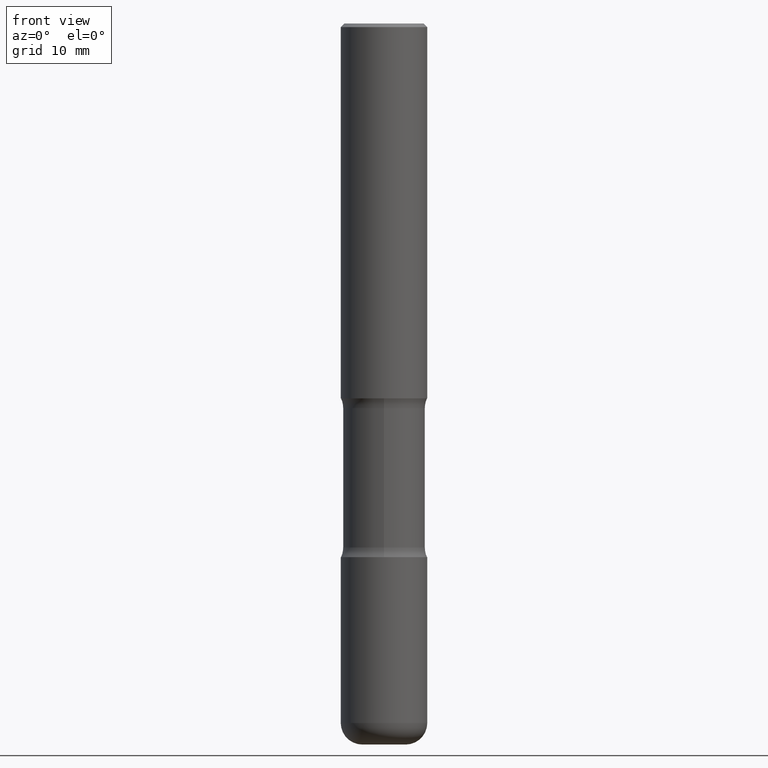
[diagram: clean part render]
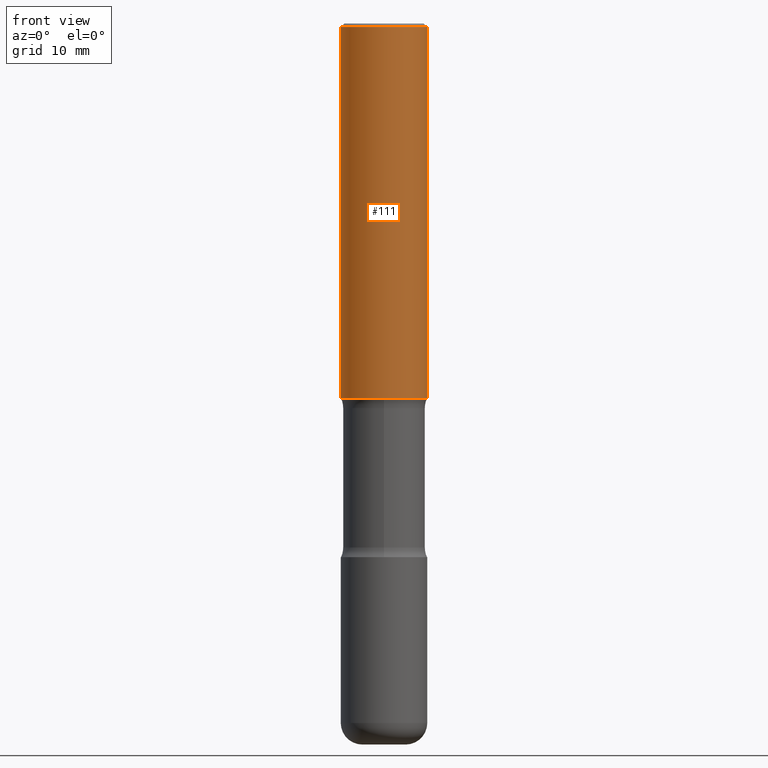
[diagram: same view with one face highlighted and labeled with its STEP entity id]
A machine part, front view. The second image highlights one B-rep face of the part: STEP entity #111.
In plain terms, the highlighted cylindrical surface (partial cylindrical patch) has radius 5.9995 mm, axis along (-0, 0, 1).
Its self-contained STEP definition (entity closure, byte-faithful):
#7 = VECTOR ( 'NONE', #421, 39.37007874015748143 ) ;
#15 = AXIS2_PLACEMENT_3D ( 'NONE', #34, #158, #553 ) ;
#34 = CARTESIAN_POINT ( 'NONE',  ( 5.006363740022212241E-29, -7.147760596879688202E-15, -2.047200000000000131 ) ) ;
#35 = EDGE_CURVE ( 'NONE', #76, #531, #405, .T. ) ;
#40 = ORIENTED_EDGE ( 'NONE', *, *, #508, .T. ) ;
#44 = CARTESIAN_POINT ( 'NONE',  ( 0.000000000000000000, 0.000000000000000000, 0.000000000000000000 ) ) ;
#53 = VERTEX_POINT ( 'NONE', #326 ) ;
#59 = AXIS2_PLACEMENT_3D ( 'NONE', #198, #505, #378 ) ;
#76 = VERTEX_POINT ( 'NONE', #521 ) ;
#111 = ADVANCED_FACE ( 'NONE', ( #445 ), #432, .T. ) ;
#119 = LINE ( 'NONE', #333, #559 ) ;
#136 = AXIS2_PLACEMENT_3D ( 'NONE', #44, #207, #213 ) ;
#158 = DIRECTION ( 'NONE',  ( -2.445468806185136597E-29, 3.491481338843145583E-15, 1.000000000000000000 ) ) ;
#198 = CARTESIAN_POINT ( 'NONE',  ( 4.890937612370289799E-31, -6.982962677686315028E-17, -0.02000000000000006981 ) ) ;
#207 = DIRECTION ( 'NONE',  ( -2.445468806185136597E-29, 3.491481338843145583E-15, 1.000000000000000000 ) ) ;
#213 = DIRECTION ( 'NONE',  ( 1.000000000000000000, -6.982962677686266711E-15, 4.876176775795936353E-29 ) ) ;
#242 = ORIENTED_EDGE ( 'NONE', *, *, #479, .F. ) ;
#261 = ORIENTED_EDGE ( 'NONE', *, *, #455, .F. ) ;
#275 = CIRCLE ( 'NONE', #59, 0.2361999999999998823 ) ;
#288 = DIRECTION ( 'NONE',  ( -2.445468806185136877E-29, 3.491481338843145188E-15, 1.000000000000000000 ) ) ;
#319 = VERTEX_POINT ( 'NONE', #538 ) ;
#326 = CARTESIAN_POINT ( 'NONE',  ( 0.2361999999999998823, -1.690279253850498179E-15, -0.02000000000000006981 ) ) ;
#327 = ORIENTED_EDGE ( 'NONE', *, *, #35, .T. ) ;
#333 = CARTESIAN_POINT ( 'NONE',  ( 0.2361999999999999933, -1.649375784469496131E-15, 1.151752954443000088E-29 ) ) ;
#378 = DIRECTION ( 'NONE',  ( 1.000000000000000000, -6.982962677686267499E-15, 0.000000000000000000 ) ) ;
#405 = CIRCLE ( 'NONE', #15, 0.2362000000000001321 ) ;
#421 = DIRECTION ( 'NONE',  ( -2.445468806185136877E-29, 3.491481338843145188E-15, 1.000000000000000000 ) ) ;
#432 = CYLINDRICAL_SURFACE ( 'NONE', #136, 0.2361999999999999933 ) ;
#445 = FACE_OUTER_BOUND ( 'NONE', #546, .T. ) ;
#455 = EDGE_CURVE ( 'NONE', #319, #53, #275, .T. ) ;
#479 = EDGE_CURVE ( 'NONE', #76, #319, #555, .T. ) ;
#505 = DIRECTION ( 'NONE',  ( -2.445468806185136597E-29, 3.491481338843145583E-15, 1.000000000000000000 ) ) ;
#506 = CARTESIAN_POINT ( 'NONE',  ( 0.2362000000000001321, -8.797136381349186305E-15, -2.047200000000000131 ) ) ;
#508 = EDGE_CURVE ( 'NONE', #531, #53, #119, .T. ) ;
#521 = CARTESIAN_POINT ( 'NONE',  ( -0.2362000000000001598, -1.930493169962915017E-15, -2.047200000000000131 ) ) ;
#531 = VERTEX_POINT ( 'NONE', #506 ) ;
#538 = CARTESIAN_POINT ( 'NONE',  ( -0.2361999999999998823, 1.579546157692632438E-15, -0.02000000000000006981 ) ) ;
#546 = EDGE_LOOP ( 'NONE', ( #242, #327, #40, #261 ) ) ;
#548 = CARTESIAN_POINT ( 'NONE',  ( -0.2361999999999999933, 1.678301941865356591E-15, -1.161852468318208757E-29 ) ) ;
#553 = DIRECTION ( 'NONE',  ( 1.000000000000000000, -6.982962677686269077E-15, 0.000000000000000000 ) ) ;
#555 = LINE ( 'NONE', #548, #7 ) ;
#559 = VECTOR ( 'NONE', #288, 39.37007874015748143 ) ;